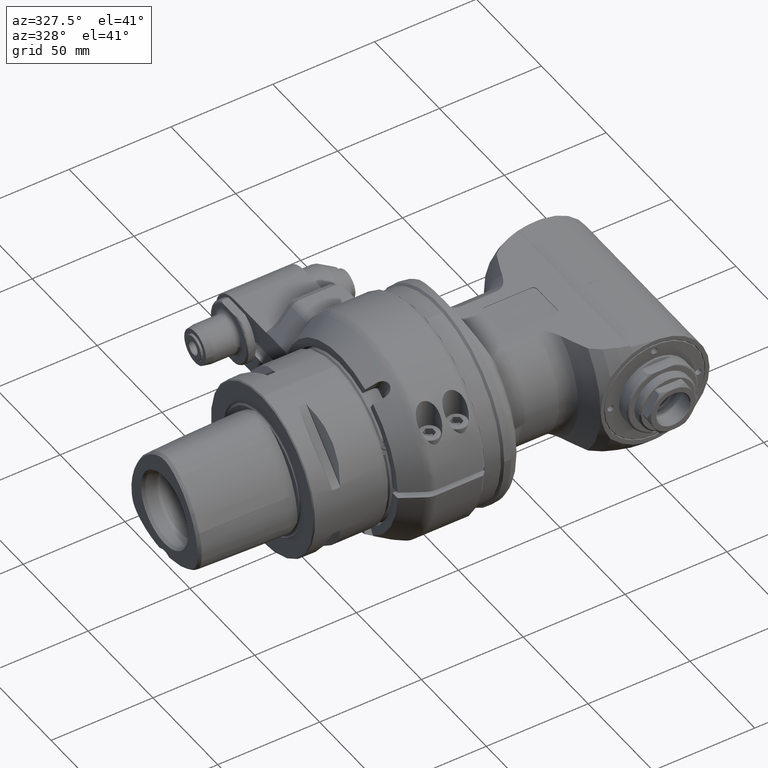
[diagram: clean part render]
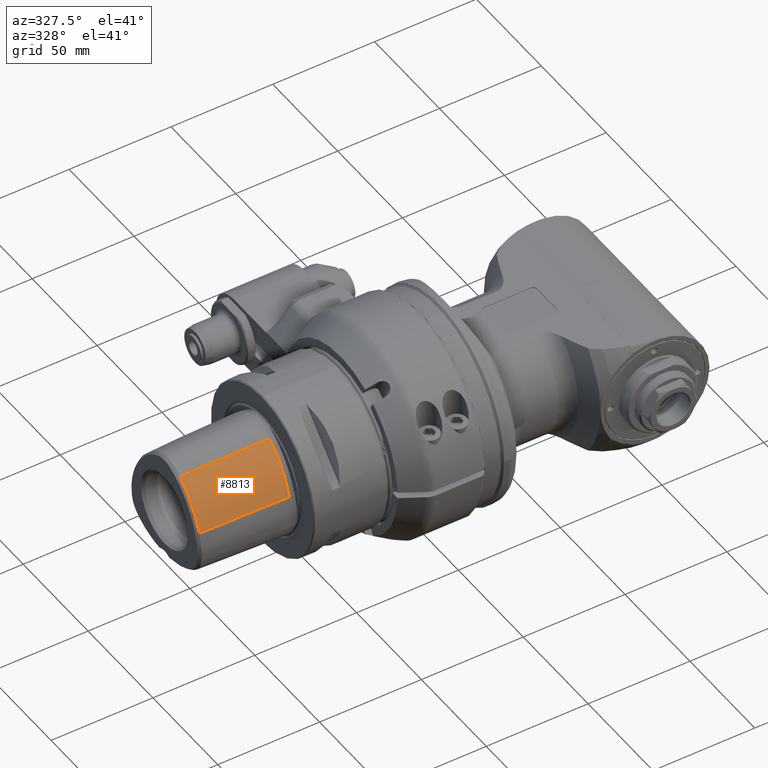
[diagram: same view with one face highlighted and labeled with its STEP entity id]
A machine part, auxiliary view. The second image highlights one B-rep face of the part: STEP entity #8813.
In plain terms, the highlighted face is a freeform B-spline surface patch.
Its self-contained STEP definition (entity closure, byte-faithful):
#35=B_SPLINE_SURFACE_WITH_KNOTS('',3,3,((#60569,#60570,#60571,#60572),(#60573,
#60574,#60575,#60576),(#60577,#60578,#60579,#60580),(#60581,#60582,#60583,
#60584),(#60585,#60586,#60587,#60588),(#60589,#60590,#60591,#60592),(#60593,
#60594,#60595,#60596),(#60597,#60598,#60599,#60600),(#60601,#60602,#60603,
#60604),(#60605,#60606,#60607,#60608),(#60609,#60610,#60611,#60612),(#60613,
#60614,#60615,#60616),(#60617,#60618,#60619,#60620),(#60621,#60622,#60623,
#60624),(#60625,#60626,#60627,#60628),(#60629,#60630,#60631,#60632),(#60633,
#60634,#60635,#60636),(#60637,#60638,#60639,#60640),(#60641,#60642,#60643,
#60644),(#60645,#60646,#60647,#60648),(#60649,#60650,#60651,#60652)),
 .UNSPECIFIED.,.F.,.F.,.F.,(4,1,1,1,1,1,1,1,1,1,1,1,1,1,1,1,1,1,4),(4,4),
(-0.009969461510064,0.,0.224844448083,0.2529501055257,0.2810558329378,0.3372671411352,
0.4496888341253,0.4777942573729,0.5058996558587,0.5621104057908,0.6745319056551,
0.7307426555872,0.7588479429477,0.7869532134594,0.8993742955058,0.9496872614212,
0.9748436299629,1.,1.009852428677),(0.3837668071057,0.6087746130093),
 .UNSPECIFIED.);
#536=B_SPLINE_CURVE_WITH_KNOTS('',3,(#56984,#56985,#56986,#56987,#56988,
#56989),.UNSPECIFIED.,.F.,.F.,(4,2,4),(-2.08151141147938,-1.03821457115339,
-2.3114522660713E-5),.UNSPECIFIED.);
#563=B_SPLINE_CURVE_WITH_KNOTS('',3,(#59774,#59775,#59776,#59777,#59778,
#59779,#59780,#59781,#59782,#59783,#59784,#59785,#59786,#59787,#59788,#59789,
#59790,#59791,#59792,#59793,#59794,#59795,#59796,#59797,#59798,#59799,#59800,
#59801,#59802,#59803,#59804,#59805,#59806,#59807,#59808,#59809,#59810,#59811,
#59812,#59813),.UNSPECIFIED.,.F.,.F.,(4,2,2,2,2,2,2,2,2,2,2,2,2,2,2,2,2,
2,2,4),(-2.52476419103755,-2.43568787747243,-2.34689258529586,-2.16880305787753,
-2.04991725774238,-1.98190690029538,-1.80080043563769,-1.55910561035791,
-1.4208835313326,-1.26281161493332,-1.18412306389738,-1.03605945827942,
-0.777027838635516,-0.679919025198949,-0.595153787482744,-0.446431395555446,
-0.223325383182696,-0.111785319673086,-0.0560213158018207,-9.9999984737309E-7),
 .UNSPECIFIED.);
#1627=FACE_OUTER_BOUND('',#2223,.T.);
#2223=EDGE_LOOP('',(#8044,#8045,#8046,#8047));
#2790=LINE('',#60568,#3357);
#2791=LINE('',#60653,#3358);
#3357=VECTOR('',#12264,43.5141963247981);
#3358=VECTOR('',#12265,43.5141947065388);
#4096=VERTEX_POINT('',#56976);
#4097=VERTEX_POINT('',#56983);
#4197=VERTEX_POINT('',#59742);
#4198=VERTEX_POINT('',#59773);
#5299=EDGE_CURVE('',#4097,#4096,#536,.T.);
#5470=EDGE_CURVE('',#4198,#4197,#563,.T.);
#5486=EDGE_CURVE('',#4097,#4197,#2790,.T.);
#5487=EDGE_CURVE('',#4096,#4198,#2791,.T.);
#8044=ORIENTED_EDGE('',*,*,#5486,.F.);
#8045=ORIENTED_EDGE('',*,*,#5299,.T.);
#8046=ORIENTED_EDGE('',*,*,#5487,.T.);
#8047=ORIENTED_EDGE('',*,*,#5470,.T.);
#8813=ADVANCED_FACE('',(#1627),#35,.T.);
#12264=DIRECTION('',(-0.999684638200237,0.0238028799907819,-0.00800294012256716));
#12265=DIRECTION('',(-0.999684677486109,0.0139997393578312,-0.0208459323947514));
#56976=CARTESIAN_POINT('',(-80.9999999997678,-10.2207980996593,25.7755481703052));
#56983=CARTESIAN_POINT('',(-81.0000000001157,-25.5708810412345,5.04951320782769));
#56984=CARTESIAN_POINT('Ctrl Pts',(-80.999999999999,-25.5708810412337,5.04951320782745));
#56985=CARTESIAN_POINT('Ctrl Pts',(-80.999999999999,-24.0818638731571,9.47399099900144));
#56986=CARTESIAN_POINT('Ctrl Pts',(-80.999999999999,-21.8149813634611,13.6978984434856));
#56987=CARTESIAN_POINT('Ctrl Pts',(-80.999999999999,-16.173293030767,21.0704202387317));
#56988=CARTESIAN_POINT('Ctrl Pts',(-80.999999999999,-13.0935043624968,23.8458399751984));
#56989=CARTESIAN_POINT('Ctrl Pts',(-80.999999999999,-10.220798099655,25.7755481702988));
#59742=CARTESIAN_POINT('',(-124.500472849034,-24.5351178775958,4.7012717093098));
#59773=CARTESIAN_POINT('',(-124.500472606784,-9.61161077889696,24.8684543004316));
#59774=CARTESIAN_POINT('Ctrl Pts',(-124.500472595792,-9.61161080237987,
24.8684543353576));
#59775=CARTESIAN_POINT('Ctrl Pts',(-124.500482319562,-9.85967438447689,
24.7016688298507));
#59776=CARTESIAN_POINT('Ctrl Pts',(-124.500473715817,-10.1044772181676,
24.5318356584923));
#59777=CARTESIAN_POINT('Ctrl Pts',(-124.500459177652,-10.5917947632102,
24.1832265606797));
#59778=CARTESIAN_POINT('Ctrl Pts',(-124.500482737536,-10.8333615704414,
24.0051670484628));
#59779=CARTESIAN_POINT('Ctrl Pts',(-124.500404881032,-11.5501343705426,
23.4614619066154));
#59780=CARTESIAN_POINT('Ctrl Pts',(-124.500601225834,-12.0175375864092,
23.0860581665021));
#59781=CARTESIAN_POINT('Ctrl Pts',(-124.500683985345,-12.7808107749907,
22.4393924786079));
#59782=CARTESIAN_POINT('Ctrl Pts',(-124.500672952151,-13.0818417203524,
22.1751737462632));
#59783=CARTESIAN_POINT('Ctrl Pts',(-124.500575294227,-13.5479736677748,
21.7519928798411));
#59784=CARTESIAN_POINT('Ctrl Pts',(-124.500500807757,-13.716223680223,21.5962723952861));
#59785=CARTESIAN_POINT('Ctrl Pts',(-124.500334821182,-14.3260673939256,
21.0211492782079));
#59786=CARTESIAN_POINT('Ctrl Pts',(-124.500494957135,-14.7619171780093,
20.5893130056945));
#59787=CARTESIAN_POINT('Ctrl Pts',(-124.500424651148,-15.7526482318486,
19.5599344032916));
#59788=CARTESIAN_POINT('Ctrl Pts',(-124.500592981456,-16.2998025555701,
18.9539788167726));
#59789=CARTESIAN_POINT('Ctrl Pts',(-124.500578564079,-17.1301335804748,
17.9757526461421));
#59790=CARTESIAN_POINT('Ctrl Pts',(-124.500531412677,-17.4260175508599,
17.6145223925164));
#59791=CARTESIAN_POINT('Ctrl Pts',(-124.500402869909,-18.0466672863357,
16.8297122654296));
#59792=CARTESIAN_POINT('Ctrl Pts',(-124.500468466074,-18.3695886019828,
16.4044822716379));
#59793=CARTESIAN_POINT('Ctrl Pts',(-124.500474388091,-18.8407206454996,
15.7588790422211));
#59794=CARTESIAN_POINT('Ctrl Pts',(-124.500474573683,-18.9955725751033,
15.5423922436019));
#59795=CARTESIAN_POINT('Ctrl Pts',(-124.500417015937,-19.4343738586203,
14.9165836258923));
#59796=CARTESIAN_POINT('Ctrl Pts',(-124.500585742853,-19.7125296930742,
14.5044515048084));
#59797=CARTESIAN_POINT('Ctrl Pts',(-124.500649384221,-20.4584243206335,
13.3558720363051));
#59798=CARTESIAN_POINT('Ctrl Pts',(-124.500400030178,-20.9103097103268,
12.6103620936888));
#59799=CARTESIAN_POINT('Ctrl Pts',(-124.500460070404,-21.4995733602394,
11.5667468584616));
#59800=CARTESIAN_POINT('Ctrl Pts',(-124.500472496181,-21.6567014781266,
11.2807755682977));
#59801=CARTESIAN_POINT('Ctrl Pts',(-124.500494252325,-21.9455791753682,
10.7403335084932));
#59802=CARTESIAN_POINT('Ctrl Pts',(-124.500405995245,-22.0782433045673,
10.4860542903295));
#59803=CARTESIAN_POINT('Ctrl Pts',(-124.500420092615,-22.4348791171463,
9.78541313137801));
#59804=CARTESIAN_POINT('Ctrl Pts',(-124.50078393299,-22.6538970129616,9.33557600373409));
#59805=CARTESIAN_POINT('Ctrl Pts',(-124.500955297094,-23.1812897847885,
8.20095658005953));
#59806=CARTESIAN_POINT('Ctrl Pts',(-124.500861553792,-23.4793812200086,
7.51154598115127));
#59807=CARTESIAN_POINT('Ctrl Pts',(-124.500683590709,-23.8974552523196,
6.46594907107543));
#59808=CARTESIAN_POINT('Ctrl Pts',(-124.500617497055,-24.0319694054008,
6.11550650654714));
#59809=CARTESIAN_POINT('Ctrl Pts',(-124.500540092966,-24.2262918353137,
5.58713242577094));
#59810=CARTESIAN_POINT('Ctrl Pts',(-124.500518705962,-24.2898212895357,
5.41056560312696));
#59811=CARTESIAN_POINT('Ctrl Pts',(-124.50048787539,-24.4146562197066,5.05573286730944));
#59812=CARTESIAN_POINT('Ctrl Pts',(-124.500469929448,-24.475660132557,4.87828734445486));
#59813=CARTESIAN_POINT('Ctrl Pts',(-124.500472846442,-24.5351178831824,
4.70127171118624));
#60568=CARTESIAN_POINT('',(-81.0000000003492,-25.5708810414484,5.04951320718317));
#60569=CARTESIAN_POINT('Ctrl Pts',(-80.129990444332,-25.6743050031683,4.80810338613695));
#60570=CARTESIAN_POINT('Ctrl Pts',(-95.2101552082929,-25.3144316067491,
4.68963541982251));
#60571=CARTESIAN_POINT('Ctrl Pts',(-110.290319972253,-24.9545582103398,
4.57116745350707));
#60572=CARTESIAN_POINT('Ctrl Pts',(-125.370484736213,-24.5946848139206,
4.45269948719264));
#60573=CARTESIAN_POINT('Ctrl Pts',(-80.1299904442421,-25.6470003530583,
4.89098284643595));
#60574=CARTESIAN_POINT('Ctrl Pts',(-95.210155209763,-25.2873951849091,4.77176175471751));
#60575=CARTESIAN_POINT('Ctrl Pts',(-110.290319975273,-24.9277900167698,
4.65254066299907));
#60576=CARTESIAN_POINT('Ctrl Pts',(-125.370484740793,-24.5681848486206,
4.53331957128064));
#60577=CARTESIAN_POINT('Ctrl Pts',(-80.1299904419809,-24.9976351489683,
6.84100961417495));
#60578=CARTESIAN_POINT('Ctrl Pts',(-95.2101552467048,-24.6443834514991,
6.70408112370751));
#60579=CARTESIAN_POINT('Ctrl Pts',(-110.290320051425,-24.2911317540298,
6.56715263324107));
#60580=CARTESIAN_POINT('Ctrl Pts',(-125.370484856155,-23.9378800565606,
6.43022414277464));
#60581=CARTESIAN_POINT('Ctrl Pts',(-80.1299904464188,-24.1065408404883,
8.96925756161295));
#60582=CARTESIAN_POINT('Ctrl Pts',(-95.2101551742067,-23.7610760303291,
8.81311460427951));
#60583=CARTESIAN_POINT('Ctrl Pts',(-110.290319901987,-23.4156112201798,
8.65697164694607));
#60584=CARTESIAN_POINT('Ctrl Pts',(-125.370484629776,-23.0701464100206,
8.50082868961364));
#60585=CARTESIAN_POINT('Ctrl Pts',(-80.1299904344388,-22.9868679613683,
11.157160957675));
#60586=CARTESIAN_POINT('Ctrl Pts',(-95.2101553698787,-22.6510454439591,
10.9817755941815));
#60587=CARTESIAN_POINT('Ctrl Pts',(-110.290320305329,-22.3152229265498,
10.8063902306881));
#60588=CARTESIAN_POINT('Ctrl Pts',(-125.370485240768,-21.9794004091406,
10.6310048671946));
#60589=CARTESIAN_POINT('Ctrl Pts',(-80.1299904284496,-22.5242996004383,
12.0243829701749));
#60590=CARTESIAN_POINT('Ctrl Pts',(-95.2101554677095,-22.1925343214091,
11.8414375666715));
#60591=CARTESIAN_POINT('Ctrl Pts',(-110.290320506969,-21.8607690423798,
11.6584921631781));
#60592=CARTESIAN_POINT('Ctrl Pts',(-125.370485546229,-21.5290037633606,
11.4755467596746));
#60593=CARTESIAN_POINT('Ctrl Pts',(-80.129990424136,-21.6764120105183,13.5209550511149));
#60594=CARTESIAN_POINT('Ctrl Pts',(-95.2101555381608,-21.3520841636991,
13.3249880777915));
#60595=CARTESIAN_POINT('Ctrl Pts',(-110.290320652181,-21.0277563168898,
13.1290211044581));
#60596=CARTESIAN_POINT('Ctrl Pts',(-125.370485766211,-20.7034284700706,
12.9330541311346));
#60597=CARTESIAN_POINT('Ctrl Pts',(-80.1299904246023,-20.7527700118883,
14.9737236493549));
#60598=CARTESIAN_POINT('Ctrl Pts',(-95.2101555305422,-20.4364937104991,
14.7650547859215));
#60599=CARTESIAN_POINT('Ctrl Pts',(-110.290320636482,-20.1202174091198,
14.5563859224781));
#60600=CARTESIAN_POINT('Ctrl Pts',(-125.370485742422,-19.8039411077306,
14.3477170590446));
#60601=CARTESIAN_POINT('Ctrl Pts',(-80.1299904167034,-19.9088226013683,
16.1836723157749));
#60602=CARTESIAN_POINT('Ctrl Pts',(-95.2101556595633,-19.5999197255191,
15.9643386620315));
#60603=CARTESIAN_POINT('Ctrl Pts',(-110.290320902413,-19.2910168496698,
15.7450050082881));
#60604=CARTESIAN_POINT('Ctrl Pts',(-125.370486145273,-18.9821139738106,
15.5256713545546));
#60605=CARTESIAN_POINT('Ctrl Pts',(-80.1299904107862,-19.3323762962983,
16.9806538287349));
#60606=CARTESIAN_POINT('Ctrl Pts',(-95.210155756204,-19.0285691682091,16.7542956736815));
#60607=CARTESIAN_POINT('Ctrl Pts',(-110.290321101614,-18.7247620401198,
16.5279375186281));
#60608=CARTESIAN_POINT('Ctrl Pts',(-125.370486447034,-18.4209549120406,
16.3015793635746));
#60609=CARTESIAN_POINT('Ctrl Pts',(-80.1299904068915,-18.2875972450183,
18.3492463121849));
#60610=CARTESIAN_POINT('Ctrl Pts',(-95.2101558198353,-17.9931879129391,
18.1106721913415));
#60611=CARTESIAN_POINT('Ctrl Pts',(-110.290321232775,-17.6987785808598,
17.8720980704981));
#60612=CARTESIAN_POINT('Ctrl Pts',(-125.370486645715,-17.4043692487906,
17.6335239496446));
#60613=CARTESIAN_POINT('Ctrl Pts',(-80.1299904042709,-17.0120678633183,
19.8491628815849));
#60614=CARTESIAN_POINT('Ctrl Pts',(-95.2101558626266,-16.7294055406491,
19.5967670764715));
#60615=CARTESIAN_POINT('Ctrl Pts',(-110.290321320986,-16.4467432179798,
19.3443712713581));
#60616=CARTESIAN_POINT('Ctrl Pts',(-125.370486779346,-16.1640808953106,
19.0919754662446));
#60617=CARTESIAN_POINT('Ctrl Pts',(-80.129990400372,-15.8260698740283,21.097635061805));
#60618=CARTESIAN_POINT('Ctrl Pts',(-95.2101559263078,-15.5546225435591,
20.8333365677615));
#60619=CARTESIAN_POINT('Ctrl Pts',(-110.290321452238,-15.2831752130898,
20.5690380737181));
#60620=CARTESIAN_POINT('Ctrl Pts',(-125.370486978177,-15.0117278826206,
20.3047395796846));
#60621=CARTESIAN_POINT('Ctrl Pts',(-80.1299903944597,-15.1285811206283,
21.791690617275));
#60622=CARTESIAN_POINT('Ctrl Pts',(-95.2101560228684,-14.8638756317291,
21.5206533112415));
#60623=CARTESIAN_POINT('Ctrl Pts',(-110.290321651278,-14.5991701428298,
21.2496160052181));
#60624=CARTESIAN_POINT('Ctrl Pts',(-125.370487279678,-14.3344646539306,
20.9785786991946));
#60625=CARTESIAN_POINT('Ctrl Pts',(-80.1299903865316,-14.0626050701783,
22.812637314935));
#60626=CARTESIAN_POINT('Ctrl Pts',(-95.2101561523794,-13.8085826171291,
22.5314565116115));
#60627=CARTESIAN_POINT('Ctrl Pts',(-110.290321918219,-13.5545601640798,
22.2502757082781));
#60628=CARTESIAN_POINT('Ctrl Pts',(-125.370487684069,-13.3005377110406,
21.9690949049446));
#60629=CARTESIAN_POINT('Ctrl Pts',(-80.1299903873527,-12.8004037361683,
23.908412524765));
#60630=CARTESIAN_POINT('Ctrl Pts',(-95.2101561389404,-12.5596992905191,
23.6156979297915));
#60631=CARTESIAN_POINT('Ctrl Pts',(-110.29032189054,-12.3189948448798,23.3229833348281));
#60632=CARTESIAN_POINT('Ctrl Pts',(-125.37048764213,-12.0782903992306,23.0302687398546));
#60633=CARTESIAN_POINT('Ctrl Pts',(-80.1299903825076,-11.4941295701283,
24.907428921195));
#60634=CARTESIAN_POINT('Ctrl Pts',(-95.2101562180914,-11.2679220820791,
24.6034950646615));
#60635=CARTESIAN_POINT('Ctrl Pts',(-110.290322053671,-11.0417145940398,
24.2995612081181));
#60636=CARTESIAN_POINT('Ctrl Pts',(-125.370487889251,-10.8155071060006,
23.9956273515846));
#60637=CARTESIAN_POINT('Ctrl Pts',(-80.1299903770951,-10.7787501912683,
25.421358882465));
#60638=CARTESIAN_POINT('Ctrl Pts',(-95.2101563064819,-10.5608433462691,
25.1114478936215));
#60639=CARTESIAN_POINT('Ctrl Pts',(-110.290322235882,-10.3429365012598,
24.8015369047781));
#60640=CARTESIAN_POINT('Ctrl Pts',(-125.370488165271,-10.1250296562606,
24.4916259159346));
#60641=CARTESIAN_POINT('Ctrl Pts',(-80.1299903727864,-10.3447107884483,
25.719759559655));
#60642=CARTESIAN_POINT('Ctrl Pts',(-95.2101563768721,-10.1320660904691,
25.4062299487515));
#60643=CARTESIAN_POINT('Ctrl Pts',(-110.290322380952,-9.91942139248382,
25.0927003378481));
#60644=CARTESIAN_POINT('Ctrl Pts',(-125.370488385032,-9.70677669450156,
24.7791707269446));
#60645=CARTESIAN_POINT('Ctrl Pts',(-80.1299903730416,-10.0895879787783,
25.889572607945));
#60646=CARTESIAN_POINT('Ctrl Pts',(-95.2101563726923,-9.88023996033908,
25.5739196467015));
#60647=CARTESIAN_POINT('Ctrl Pts',(-110.290322372342,-9.67089194190182,
25.2582666854581));
#60648=CARTESIAN_POINT('Ctrl Pts',(-125.370488372002,-9.46154392346456,
24.9426137242146));
#60649=CARTESIAN_POINT('Ctrl Pts',(-80.1299903735836,-10.0175860129083,
25.937053600945));
#60650=CARTESIAN_POINT('Ctrl Pts',(-95.2101563638524,-9.80918831080008,
25.6208015964115));
#60651=CARTESIAN_POINT('Ctrl Pts',(-110.290322354122,-9.60079060868682,
25.3045495918781));
#60652=CARTESIAN_POINT('Ctrl Pts',(-125.370488344382,-9.39239290657456,
24.9882975873446));
#60653=CARTESIAN_POINT('',(-80.9999999993055,-10.2207981011684,25.7755481693042));